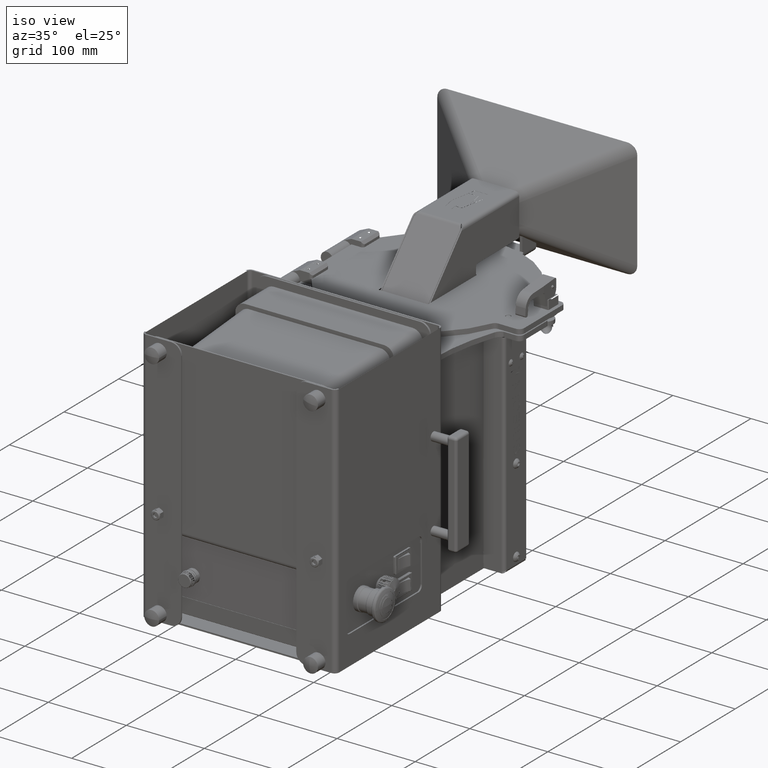
[diagram: clean part render]
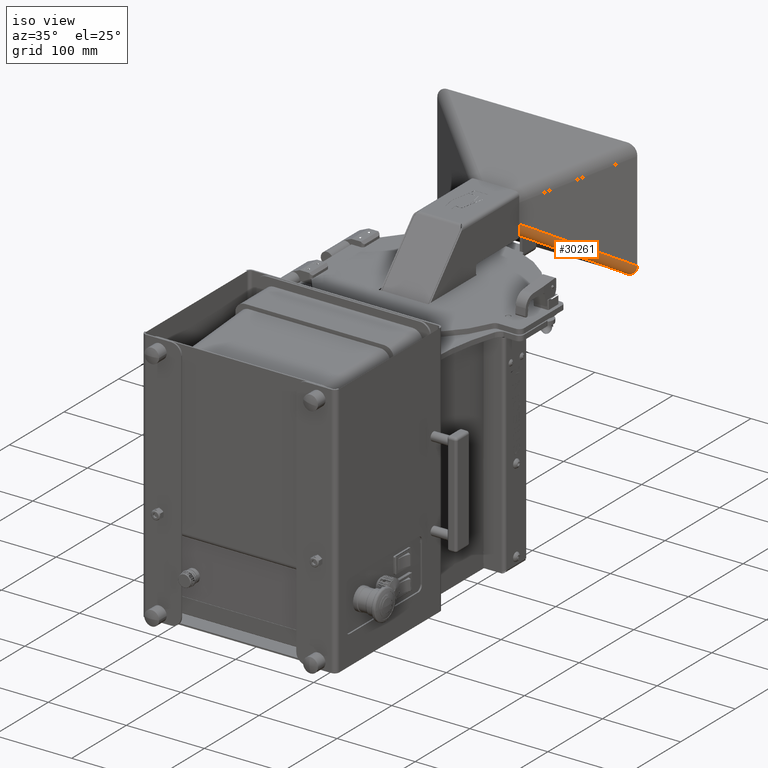
[diagram: same view with one face highlighted and labeled with its STEP entity id]
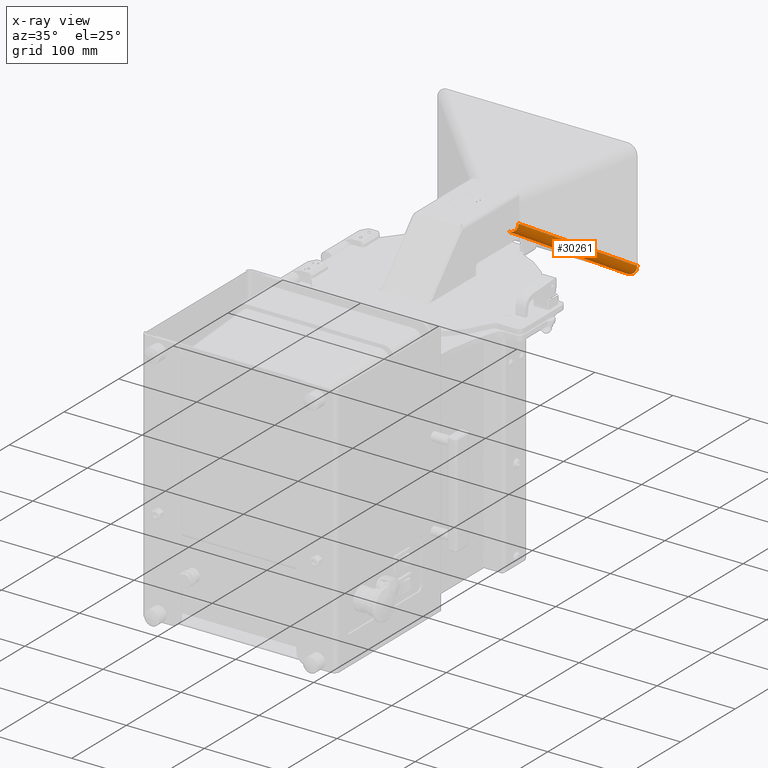
[diagram: x-ray of the same camera — body ghosted, the highlighted face saturated]
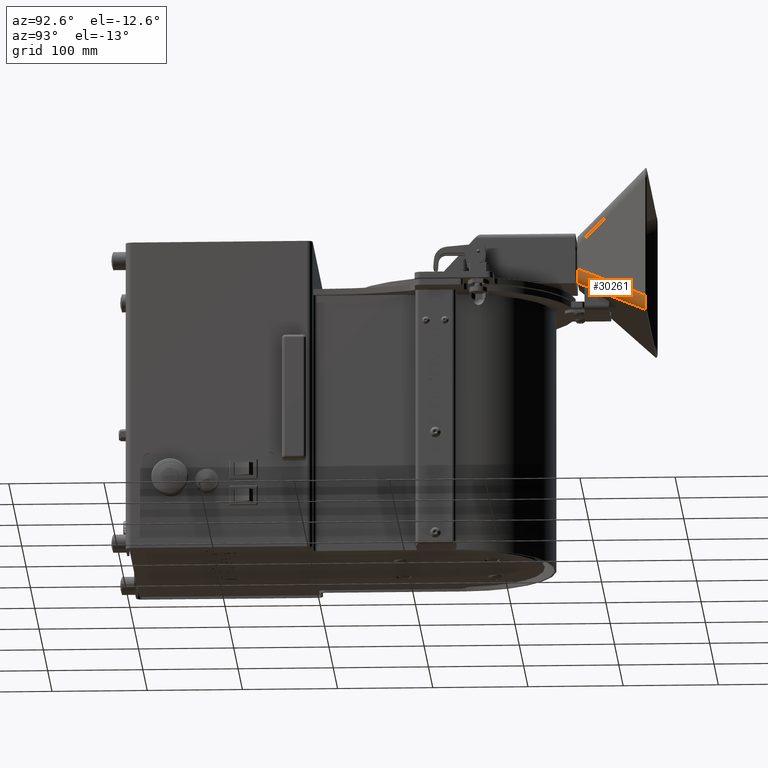
[diagram: same view with one face highlighted and labeled with its STEP entity id]
A machine part, iso view. The second image highlights one B-rep face of the part: STEP entity #30261.
The next image is the same camera in x-ray: the body ghosted, the highlighted face saturated — about 0% of this face is hidden behind the body in this view.
A second angle (auxiliary view) of the same face is appended — the face is thin or edge-on in the first view.
In plain terms, the highlighted face is a freeform B-spline surface patch.
Its self-contained STEP definition (entity closure, byte-faithful):
#2996 = CARTESIAN_POINT ( 'NONE',  ( 2.595874270029239206, 12.35581817265037508, 10.96083795011766782 ) ) ;
#5849 = CARTESIAN_POINT ( 'NONE',  ( 0.7169502042358935068, 10.85581863166461147, 11.97996428969558202 ) ) ;
#6260 = CARTESIAN_POINT ( 'NONE',  ( 0.6487720000255544628, 10.85581863008809655, 11.97646362571060585 ) ) ;
#9670 = CARTESIAN_POINT ( 'NONE',  ( 4.941713260333409075, 13.85581780158335263, 10.13698086610402882 ) ) ;
#9891 = DIRECTION ( 'NONE',  ( -0.7321433158606620584, -0.5640251443386912200, 0.3818923953082506983 ) ) ;
#10790 = EDGE_CURVE ( 'NONE', #72150, #32960, #49203, .T. ) ;
#11536 = CARTESIAN_POINT ( 'NONE',  ( 4.676227059374725492, 13.85581772279290291, 9.962043221460872289 ) ) ;
#12562 = EDGE_CURVE ( 'NONE', #68777, #32960, #39372, .T. ) ;
#13017 = CARTESIAN_POINT ( 'NONE',  ( 1.047508720326039366, 10.85581871645879914, 12.16823221728990667 ) ) ;
#13589 = ORIENTED_EDGE ( 'NONE', *, *, #72644, .F. ) ;
#14920 = FACE_OUTER_BOUND ( 'NONE', #60767, .T. ) ;
#15940 = ORIENTED_EDGE ( 'NONE', *, *, #12562, .T. ) ;
#16471 = DIRECTION ( 'NONE',  ( -0.7321433158606619473, -0.5640251443386914421, 0.3818923953082509759 ) ) ;
#17400 = CARTESIAN_POINT ( 'NONE',  ( 1.134769344085652332, 10.85581879460098342, 12.34172956134998600 ) ) ;
#18062 = CARTESIAN_POINT ( 'NONE',  ( 4.818934044994474419, 13.85581771521197325, 9.945212274524726226 ) ) ;
#18225 = CARTESIAN_POINT ( 'NONE',  ( 1.148772000025555906, 10.85581882421204902, 12.40747424947017308 ) ) ;
#18694 = CARTESIAN_POINT ( 'NONE',  ( 4.542976540032924504, 13.85581771521265004, 9.945212274524726226 ) ) ;
#19010 = CARTESIAN_POINT ( 'NONE',  ( 0.9031270804762813187, 10.85581865919845690, 12.04109792150025982 ) ) ;
#23726 = EDGE_CURVE ( 'NONE', #68777, #74133, #64481, .T. ) ;
#24059 = CARTESIAN_POINT ( 'NONE',  ( 0.9247295049871044892, 10.85581863008741799, 11.97646362571060585 ) ) ;
#24126 = ORIENTED_EDGE ( 'NONE', *, *, #10790, .F. ) ;
#24221 = CARTESIAN_POINT ( 'NONE',  ( 1.148772000025556128, 10.85581885528454649, 12.47646362571055434 ) ) ;
#24713 = CARTESIAN_POINT ( 'NONE',  ( 5.042976540032927169, 13.85581794040909998, 10.44521227452467649 ) ) ;
#30218 = CARTESIAN_POINT ( 'NONE',  ( 0.7820225193673555619, 10.85581863766834942, 11.99329457264675014 ) ) ;
#30261 = ADVANCED_FACE ( 'NONE', ( #14920 ), #55188, .F. ) ;
#32960 = VERTEX_POINT ( 'NONE', #41823 ) ;
#34197 = CARTESIAN_POINT ( 'NONE',  ( 5.042976540032927169, 13.85581794040909998, 10.44521227452467649 ) ) ;
#35403 = CARTESIAN_POINT ( 'NONE',  ( 5.042976540032927169, 13.85581794040909998, 10.44521227452467649 ) ) ;
#39372 = LINE ( 'NONE', #34197, #76085 ) ;
#41558 = CARTESIAN_POINT ( 'NONE',  ( 5.042976540032924504, 13.85581781611912078, 10.16925476956315322 ) ) ;
#41823 = CARTESIAN_POINT ( 'NONE',  ( 1.148772000025556128, 10.85581885528454649, 12.47646362571055434 ) ) ;
#43299 = CARTESIAN_POINT ( 'NONE',  ( 0.9570034084462331059, 10.85581867569585057, 12.07772690541011151 ) ) ;
#45295 = CARTESIAN_POINT ( 'NONE',  ( 0.6487720000255544628, 10.85581863008809655, 11.97646362571060585 ) ) ;
#47154 = LINE ( 'NONE', #2996, #58377 ) ;
#48585 = CARTESIAN_POINT ( 'NONE',  ( 5.028973884093020708, 13.85581787972553691, 10.31047821016410815 ) ) ;
#48962 = CARTESIAN_POINT ( 'NONE',  ( 5.042976540032926280, 13.85581790933660429, 10.37622289828429523 ) ) ;
#49203 = B_SPLINE_CURVE_WITH_KNOTS ( 'NONE', 3,
 ( #6260, #73766, #5849, #30218, #72133, #19010, #43299, #13017, #54097, #17400, #18225, #24221 ),
 .UNSPECIFIED., .F., .F.,
 ( 4, 2, 2, 2, 2, 4 ),
 ( 0.000000000000000000, 0.1250000000000000000, 0.2500000000000000000, 0.5000000000000000000, 0.7500000000000000000, 1.000000000000000000 ),
 .UNSPECIFIED. ) ;
#50763 = ORIENTED_EDGE ( 'NONE', *, *, #23726, .F. ) ;
#53934 = CARTESIAN_POINT ( 'NONE',  ( 0.6487720000255544628, 10.85581863008809655, 11.97646362571060585 ) ) ;
#54097 = CARTESIAN_POINT ( 'NONE',  ( 1.084137704235894395, 10.85581874072435760, 12.22210854525985191 ) ) ;
#54178 = CARTESIAN_POINT ( 'NONE',  ( 4.577471228153116911, 13.85581771521256478, 9.945212274524726226 ) ) ;
#55188 = B_SPLINE_SURFACE_WITH_KNOTS ( 'NONE', 3, 1, ( 
 ( #70418, #71966 ),
 ( #41558, #78009 ),
 ( #18062, #24059 ),
 ( #78387, #53934 ) ),
 .UNSPECIFIED., .F., .F., .F.,
 ( 4, 4 ),
 ( 2, 2 ),
 ( 0.000000000000000000, 1.000000000000000000 ),
 ( 0.000000000000000000, 1.000000000000000000 ),
 .UNSPECIFIED. ) ;
#57338 = CARTESIAN_POINT ( 'NONE',  ( 4.542976540032924504, 13.85581771521265004, 9.945212274524726226 ) ) ;
#58377 = VECTOR ( 'NONE', #16471, 39.37007874015748143 ) ;
#60618 = CARTESIAN_POINT ( 'NONE',  ( 4.851207948453603258, 13.85581776082040406, 10.04647555422423189 ) ) ;
#60767 = EDGE_LOOP ( 'NONE', ( #50763, #15940, #24126, #13589 ) ) ;
#64481 = B_SPLINE_CURVE_WITH_KNOTS ( 'NONE', 3,
 ( #24713, #48962, #48585, #72641, #9670, #60618, #66234, #66649, #11536, #73439, #54178, #18694 ),
 .UNSPECIFIED., .F., .F.,
 ( 4, 2, 2, 2, 2, 4 ),
 ( 0.000000000000000000, 0.2500000000000000000, 0.5000000000000000000, 0.7500000000000000000, 0.8750000000000000000, 1.000000000000000000 ),
 .UNSPECIFIED. ) ;
#66234 = CARTESIAN_POINT ( 'NONE',  ( 4.797331620483650916, 13.85581774432301216, 10.00984657031438019 ) ) ;
#66649 = CARTESIAN_POINT ( 'NONE',  ( 4.707615858416041910, 13.85581772722004246, 9.971872840427067786 ) ) ;
#68777 = VERTEX_POINT ( 'NONE', #35403 ) ;
#70418 = CARTESIAN_POINT ( 'NONE',  ( 5.042976540032926280, 13.85581794040909998, 10.44521227452467649 ) ) ;
#71966 = CARTESIAN_POINT ( 'NONE',  ( 1.148772000025556128, 10.85581885528454649, 12.47646362571055434 ) ) ;
#72133 = CARTESIAN_POINT ( 'NONE',  ( 0.8134113184086723125, 10.85581864209548542, 12.00312419161294564 ) ) ;
#72150 = VERTEX_POINT ( 'NONE', #45295 ) ;
#72641 = CARTESIAN_POINT ( 'NONE',  ( 4.978342244243264325, 13.85581782584891108, 10.19085719407397406 ) ) ;
#72644 = EDGE_CURVE ( 'NONE', #74133, #72150, #47154, .T. ) ;
#73439 = CARTESIAN_POINT ( 'NONE',  ( 4.611154744243263437, 13.85581771678916496, 9.948712938509702397 ) ) ;
#73766 = CARTESIAN_POINT ( 'NONE',  ( 0.6832666881457483132, 10.85581863008801129, 11.97646362571060585 ) ) ;
#74133 = VERTEX_POINT ( 'NONE', #57338 ) ;
#76085 = VECTOR ( 'NONE', #9891, 39.37007874015748854 ) ;
#78009 = CARTESIAN_POINT ( 'NONE',  ( 1.148772000025555240, 10.85581873099456729, 12.20050612074903107 ) ) ;
#78387 = CARTESIAN_POINT ( 'NONE',  ( 4.542976540032924504, 13.85581771521265004, 9.945212274524726226 ) ) ;